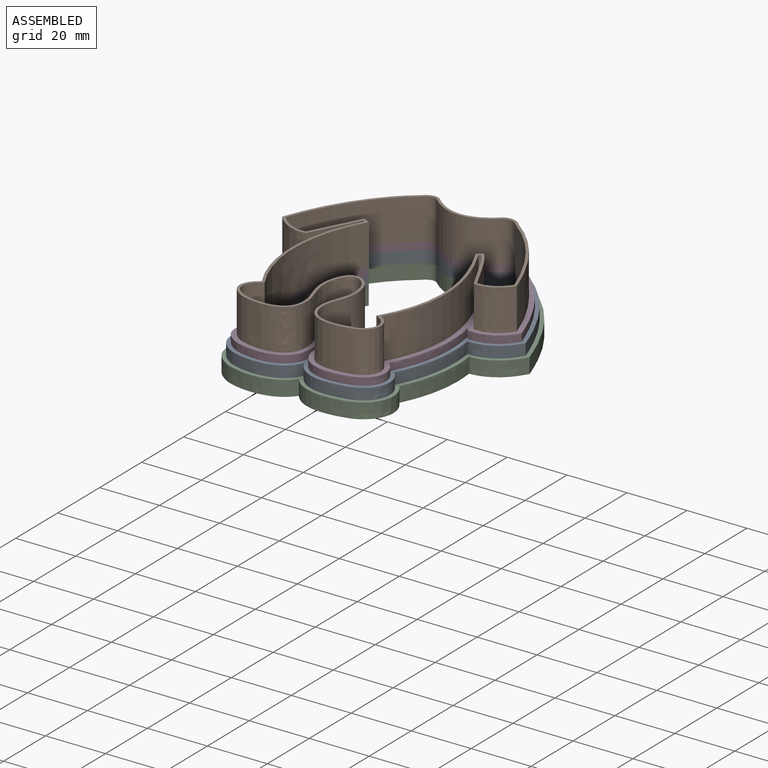
[diagram: assembled view]
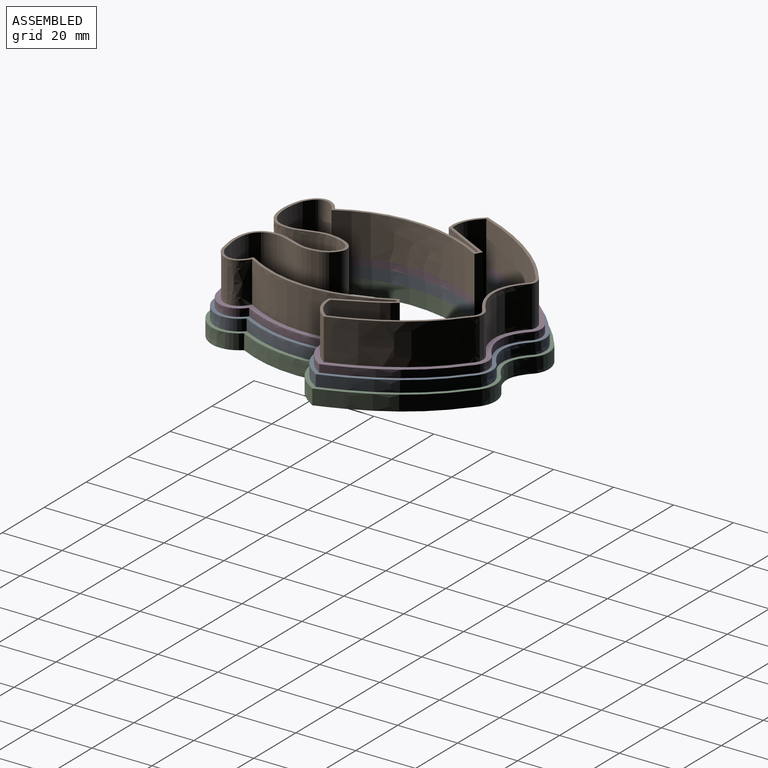
[diagram: assembled view, second angle]
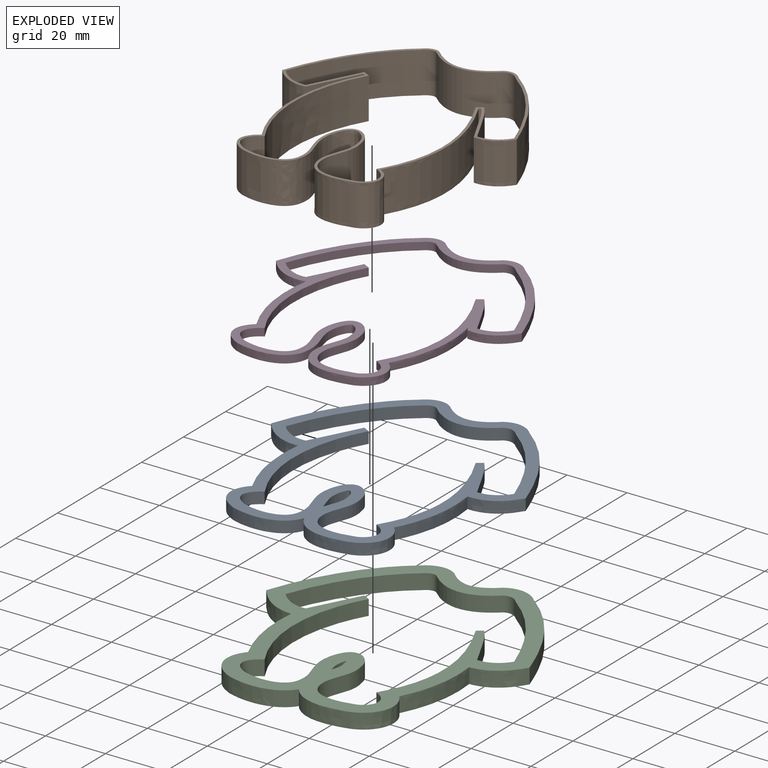
[diagram: exploded view]
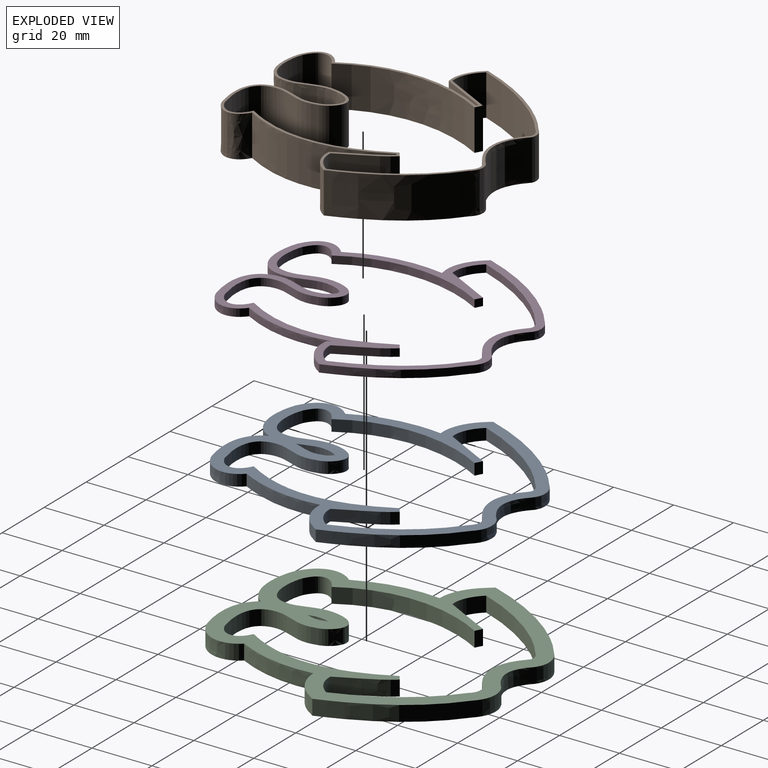
[diagram: exploded view, second angle]
ASSEMBLY  parts=4 mates=3
PART A: 39 faces, bbox 88.5x93.8x7.5 mm
  f0: plane 93.84x88.53mm, normal (0,0,1), area 1396.7mm2, adj f2,f3,f4,f5,f6,f7,f8,f9
  f1: plane 93.84x88.53mm, normal (0,0,-1), area 1396.7mm2, adj f2,f3,f4,f5,f6,f7,f8,f9
  f2: extruded ~3.81x3.17mm, area 13.3mm2, adj f0,f1,f17,f18
  f3: extruded ~9.79x3.81mm, area 38.6mm2, adj f0,f1,f17,f18
  f4: extruded ~19.63x6.68mm, area 85.5mm2, adj f0,f1,f5,f16
  f5: extruded ~14.43x6.72mm, area 69.8mm2, adj f0,f1,f4,f6
  f6: extruded ~28.01x5.45mm, area 110.3mm2, adj f0,f1,f5,f7
  f7: extruded ~13.71x8.15mm, area 64.2mm2, adj f0,f1,f6,f8
  f8: extruded ~35.43x23.59mm, area 164.8mm2, adj f0,f1,f7,f9
  f9: extruded ~9.82x3.81mm, area 40.9mm2, adj f0,f1,f8,f10
  f10: extruded ~17.84x4.35mm, area 77.6mm2, adj f0,f1,f9,f11
  f11: extruded ~8.95x3.81mm, area 38.1mm2, adj f0,f1,f10,f12
  f12: extruded ~35.98x24.62mm, area 168.5mm2, adj f0,f1,f11,f13
  f13: extruded ~14.33x7.58mm, area 64.2mm2, adj f0,f1,f12,f14
  f14: extruded ~28.6x5.12mm, area 112.1mm2, adj f0,f1,f13,f15
  f15: extruded ~14.22x6.23mm, area 67.5mm2, adj f0,f1,f14,f16
  f16: extruded ~20.24x6.92mm, area 88.5mm2, adj f0,f1,f4,f15
  f17: extruded ~9.61x3.81mm, area 37.6mm2, adj f0,f1,f2,f3
  f18: extruded ~3.81x2.99mm, area 13.9mm2, adj f0,f1,f2,f3
  f19: extruded ~16.15x3.81mm, area 63.3mm2, adj f0,f1,f20,f38
  f20: extruded ~15.43x6.17mm, area 71.3mm2, adj f0,f1,f19,f21
  f21: extruded ~9.6x4.04mm, area 50.7mm2, adj f0,f1,f20,f22
  f22: extruded ~48.24x7.33mm, area 193.6mm2, adj f0,f1,f21,f23
  f23: plane 3.81x1.9mm, normal (-0.59,0.81,0), area 8.9mm2, adj f0,f1,f22,f24
  f24: extruded ~16.63x9.26mm, area 72.7mm2, adj f0,f1,f23,f25
  f25: extruded ~8.95x4.86mm, area 40.6mm2, adj f0,f1,f24,f26
  f26: extruded ~32.06x21.92mm, area 150.3mm2, adj f0,f1,f25,f27
  f27: extruded ~5.06x3.81mm, area 21.7mm2, adj f0,f1,f26,f28
  f28: extruded ~22.41x5.16mm, area 96mm2, adj f0,f1,f27,f29
  f29: extruded ~4.09x3.81mm, area 17.4mm2, adj f0,f1,f28,f30
  f30: extruded ~32.33x22.77mm, area 152.7mm2, adj f0,f1,f29,f31
  f31: extruded ~9.83x4.52mm, area 42.8mm2, adj f0,f1,f30,f32
  f32: plane 16.02x8.32mm, normal (-0.89,0.46,0), area 68.8mm2, adj f0,f1,f31,f33
  f33: plane 3.81x2.3mm, normal (0.47,0.88,0), area 9.9mm2, adj f0,f1,f32,f34
  f34: extruded ~48.33x7.12mm, area 193.3mm2, adj f0,f1,f33,f35
  f35: extruded ~9.64x3.95mm, area 49.9mm2, adj f0,f1,f34,f36
  f36: extruded ~15.4x5.65mm, area 69.6mm2, adj f0,f1,f35,f37
  f37: extruded ~16.9x3.81mm, area 65.7mm2, adj f0,f1,f36,f38
  f38: extruded ~10.77x6.17mm, area 67.2mm2, adj f0,f1,f19,f37
PART B: 42 faces, bbox 82.8x88.8x18.2 mm
  f0: plane 88.8x82.77mm, normal (0,0,1), area 353.1mm2, adj f2,f3,f4,f5,f6,f7,f8,f9
  f1: plane 88.8x82.77mm, normal (0,0,-1), area 353.1mm2, adj f2,f3,f4,f5,f6,f7,f8,f9
  f2: extruded ~16.11x13.72mm, area 227.1mm2, adj f0,f1,f3,f21
  f3: extruded ~16.57x13.72mm, area 277.9mm2, adj f0,f1,f2,f4
  f4: extruded ~13.72x10.81mm, area 198.4mm2, adj f0,f1,f3,f5
  f5: extruded ~47.62x13.72mm, area 685.9mm2, adj f0,f1,f4,f6
  f6: plane 13.72x0.6mm, normal (0.59,-0.81,0), area 10.1mm2, adj f0,f1,f5,f7
  f7: extruded ~16.28x13.72mm, area 254.8mm2, adj f0,f1,f6,f8
  f8: extruded ~13.72x10.48mm, area 171.8mm2, adj f0,f1,f7,f9
  f9: extruded ~32.85x22.31mm, area 553mm2, adj f0,f1,f8,f10
  f10: extruded ~13.72x6.18mm, area 94.5mm2, adj f0,f1,f9,f11
  f11: extruded ~21.34x13.72mm, area 330.1mm2, adj f0,f1,f10,f12
  f12: extruded ~13.72x5.23mm, area 79.3mm2, adj f0,f1,f11,f13
  f13: extruded ~33.17x23.2mm, area 562.9mm2, adj f0,f1,f12,f14
  f14: extruded ~13.72x11.42mm, area 180.1mm2, adj f0,f1,f13,f15
  f15: plane 15.63x13.72mm, normal (0.89,-0.46,0), area 241.5mm2, adj f0,f1,f14,f16
  f16: plane 13.72x0.69mm, normal (-0.47,-0.88,0), area 10.7mm2, adj f0,f1,f15,f17
  f17: extruded ~47.64x13.72mm, area 683.8mm2, adj f0,f1,f16,f18
  f18: extruded ~13.72x10.78mm, area 194.2mm2, adj f0,f1,f17,f19
  f19: extruded ~16.64x13.72mm, area 273mm2, adj f0,f1,f18,f20
  f20: extruded ~16.83x13.72mm, area 235.6mm2, adj f0,f1,f19,f21
  f21: extruded ~13.72x9.02mm, area 208.7mm2, adj f0,f1,f2,f20
  f22: extruded ~16.15x13.72mm, area 227.7mm2, adj f0,f1,f23,f41
  f23: extruded ~15.43x13.72mm, area 256.6mm2, adj f0,f1,f22,f24
  f24: extruded ~13.72x9.6mm, area 182.5mm2, adj f0,f1,f23,f25
  f25: extruded ~48.24x13.72mm, area 697mm2, adj f0,f1,f24,f26
  f26: plane 13.72x1.9mm, normal (-0.59,0.81,0), area 32.1mm2, adj f0,f1,f25,f27
  f27: extruded ~16.63x13.72mm, area 261.8mm2, adj f0,f1,f26,f28
  f28: extruded ~13.72x8.95mm, area 146.2mm2, adj f0,f1,f27,f29
  f29: extruded ~32.06x21.92mm, area 540.9mm2, adj f0,f1,f28,f30
  f30: extruded ~13.72x5.06mm, area 78mm2, adj f0,f1,f29,f31
  f31: extruded ~22.41x13.72mm, area 345.7mm2, adj f0,f1,f30,f32
  f32: extruded ~13.72x4.09mm, area 62.8mm2, adj f0,f1,f31,f33
  f33: extruded ~32.33x22.77mm, area 549.7mm2, adj f0,f1,f32,f34
  f34: extruded ~13.72x9.83mm, area 154.2mm2, adj f0,f1,f33,f35
  f35: plane 16.02x13.72mm, normal (-0.89,0.46,0), area 247.6mm2, adj f0,f1,f34,f36
  f36: plane 13.72x2.3mm, normal (0.47,0.88,0), area 35.6mm2, adj f0,f1,f35,f37
  f37: extruded ~48.33x13.72mm, area 695.9mm2, adj f0,f1,f36,f38
  f38: extruded ~13.72x9.64mm, area 179.5mm2, adj f0,f1,f37,f39
  f39: extruded ~15.4x13.72mm, area 250.5mm2, adj f0,f1,f38,f40
  f40: extruded ~16.9x13.72mm, area 236.7mm2, adj f0,f1,f39,f41
  f41: extruded ~13.72x10.77mm, area 241.9mm2, adj f0,f1,f22,f40
PART C: 39 faces, bbox 92.2x97.2x9.7 mm
  f0: plane 97.24x92.25mm, normal (0,0,1), area 1809.1mm2, adj f2,f3,f4,f5,f6,f7,f8,f9
  f1: plane 97.24x92.25mm, normal (0,0,-1), area 1809.1mm2, adj f2,f3,f4,f5,f6,f7,f8,f9
  f2: extruded ~5.08x1.4mm, area 7.5mm2, adj f0,f1,f17,f18
  f3: extruded ~5.65x5.08mm, area 29.4mm2, adj f0,f1,f17,f18
  f4: extruded ~19.98x5.19mm, area 110.5mm2, adj f0,f1,f5,f16
  f5: extruded ~15.88x7.61mm, area 101.9mm2, adj f0,f1,f4,f6
  f6: extruded ~26.47x5.17mm, area 138.7mm2, adj f0,f1,f5,f7
  f7: extruded ~13.66x9.24mm, area 88mm2, adj f0,f1,f6,f8
  f8: extruded ~36.55x24.16mm, area 226mm2, adj f0,f1,f7,f9
  f9: extruded ~11.39x5.08mm, area 63.8mm2, adj f0,f1,f8,f10
  f10: extruded ~16.31x5.08mm, area 95.1mm2, adj f0,f1,f9,f11
  f11: extruded ~10.56x5.08mm, area 58.7mm2, adj f0,f1,f10,f12
  f12: extruded ~37.2x25.25mm, area 231.5mm2, adj f0,f1,f11,f13
  f13: extruded ~14.33x8.61mm, area 89mm2, adj f0,f1,f12,f14
  f14: extruded ~27.02x5.08mm, area 141.1mm2, adj f0,f1,f13,f15
  f15: extruded ~15.62x6.99mm, area 98mm2, adj f0,f1,f14,f16
  f16: extruded ~20.78x5.42mm, area 115.5mm2, adj f0,f1,f4,f15
  f17: extruded ~5.41x5.08mm, area 27.9mm2, adj f0,f1,f2,f3
  f18: extruded ~5.08x1.16mm, area 6.4mm2, adj f0,f1,f2,f3
  f19: extruded ~16.15x5.08mm, area 84.3mm2, adj f0,f1,f20,f38
  f20: extruded ~15.43x6.17mm, area 95mm2, adj f0,f1,f19,f21
  f21: extruded ~9.6x5.08mm, area 67.6mm2, adj f0,f1,f20,f22
  f22: extruded ~48.24x7.33mm, area 258.2mm2, adj f0,f1,f21,f23
  f23: plane 5.08x1.9mm, normal (-0.59,0.81,0), area 11.9mm2, adj f0,f1,f22,f24
  f24: extruded ~16.63x9.26mm, area 97mm2, adj f0,f1,f23,f25
  f25: extruded ~8.95x5.08mm, area 54.2mm2, adj f0,f1,f24,f26
  f26: extruded ~32.06x21.92mm, area 200.3mm2, adj f0,f1,f25,f27
  f27: extruded ~5.08x5.06mm, area 28.9mm2, adj f0,f1,f26,f28
  f28: extruded ~22.41x5.16mm, area 128mm2, adj f0,f1,f27,f29
  f29: extruded ~5.08x4.09mm, area 23.3mm2, adj f0,f1,f28,f30
  f30: extruded ~32.33x22.77mm, area 203.6mm2, adj f0,f1,f29,f31
  f31: extruded ~9.83x5.08mm, area 57.1mm2, adj f0,f1,f30,f32
  f32: plane 16.02x8.32mm, normal (-0.89,0.46,0), area 91.7mm2, adj f0,f1,f31,f33
  f33: plane 5.08x2.3mm, normal (0.47,0.88,0), area 13.2mm2, adj f0,f1,f32,f34
  f34: extruded ~48.33x7.12mm, area 257.8mm2, adj f0,f1,f33,f35
  f35: extruded ~9.64x5.08mm, area 66.5mm2, adj f0,f1,f34,f36
  f36: extruded ~15.4x5.65mm, area 92.8mm2, adj f0,f1,f35,f37
  f37: extruded ~16.9x5.08mm, area 87.7mm2, adj f0,f1,f36,f38
  f38: extruded ~10.77x6.17mm, area 89.6mm2, adj f0,f1,f19,f37
PART D: 40 faces, bbox 84x89.6x4.6 mm
  f0: plane 89.64x84.03mm, normal (0,0,1), area 967mm2, adj f2,f3,f4,f5,f6,f7,f8,f9
  f1: plane 89.64x84.03mm, normal (0,0,-1), area 967mm2, adj f2,f3,f4,f5,f6,f7,f8,f9
  f2: extruded ~16.03x2.85mm, area 41.9mm2, adj f0,f1,f3,f19
  f3: extruded ~18.7x8.39mm, area 58.8mm2, adj f0,f1,f2,f4
  f4: extruded ~12.91x5.82mm, area 42.2mm2, adj f0,f1,f3,f5
  f5: extruded ~31x5.79mm, area 81.5mm2, adj f0,f1,f4,f6
  f6: extruded ~2.54x1.36mm, area 4mm2, adj f0,f1,f5,f7
  f7: extruded ~13.31x7.05mm, area 40.5mm2, adj f0,f1,f6,f8
  f8: extruded ~34.3x23.03mm, area 106.6mm2, adj f0,f1,f7,f9
  f9: extruded ~8.24x2.54mm, area 23.2mm2, adj f0,f1,f8,f10
  f10: extruded ~19.36x4.62mm, area 55.8mm2, adj f0,f1,f9,f11
  f11: extruded ~7.34x2.54mm, area 20.4mm2, adj f0,f1,f10,f12
  f12: extruded ~34.76x24mm, area 108.8mm2, adj f0,f1,f11,f13
  f13: extruded ~14.38x6.56mm, area 42.1mm2, adj f0,f1,f12,f14
  f14: plane 2.54x0.08mm, normal (0.89,-0.46,0), area 0.2mm2, adj f0,f1,f13,f15
  f15: extruded ~30.48x5.43mm, area 79.8mm2, adj f0,f1,f14,f16
  f16: extruded ~12.77x5.47mm, area 41mm2, adj f0,f1,f15,f17
  f17: extruded ~18.94x7.83mm, area 58.3mm2, adj f0,f1,f16,f18
  f18: extruded ~16.69x2.54mm, area 43.3mm2, adj f0,f1,f17,f19
  f19: extruded ~5.78x4.2mm, area 27.1mm2, adj f0,f1,f2,f18
  f20: extruded ~16.15x2.85mm, area 42.2mm2, adj f0,f1,f21,f39
  f21: extruded ~15.43x6.17mm, area 47.5mm2, adj f0,f1,f20,f22
  f22: extruded ~9.6x4.04mm, area 33.8mm2, adj f0,f1,f21,f23
  f23: extruded ~48.24x7.33mm, area 129.1mm2, adj f0,f1,f22,f24
  f24: plane 2.54x1.9mm, normal (-0.59,0.81,0), area 5.9mm2, adj f0,f1,f23,f25
  f25: extruded ~16.63x9.26mm, area 48.5mm2, adj f0,f1,f24,f26
  f26: extruded ~8.95x4.86mm, area 27.1mm2, adj f0,f1,f25,f27
  f27: extruded ~32.06x21.92mm, area 100.2mm2, adj f0,f1,f26,f28
  f28: extruded ~5.06x2.54mm, area 14.4mm2, adj f0,f1,f27,f29
  f29: extruded ~22.41x5.16mm, area 64mm2, adj f0,f1,f28,f30
  f30: extruded ~4.09x2.54mm, area 11.6mm2, adj f0,f1,f29,f31
  f31: extruded ~32.33x22.77mm, area 101.8mm2, adj f0,f1,f30,f32
  f32: extruded ~9.83x4.52mm, area 28.6mm2, adj f0,f1,f31,f33
  f33: plane 16.02x8.32mm, normal (-0.89,0.46,0), area 45.9mm2, adj f0,f1,f32,f34
  f34: plane 2.54x2.3mm, normal (0.47,0.88,0), area 6.6mm2, adj f0,f1,f33,f35
  f35: extruded ~48.33x7.12mm, area 128.9mm2, adj f0,f1,f34,f36
  f36: extruded ~9.64x3.95mm, area 33.2mm2, adj f0,f1,f35,f37
  f37: extruded ~15.4x5.65mm, area 46.4mm2, adj f0,f1,f36,f38
  f38: extruded ~16.9x2.54mm, area 43.8mm2, adj f0,f1,f37,f39
  f39: extruded ~10.77x6.17mm, area 44.8mm2, adj f0,f1,f20,f38
PLACE A t=(-118.43,169.56,10.19)mm
PLACE B t=(-4.65,141.8,16.54)mm
PLACE C t=(92.13,108.57,5.11)mm
PLACE D t=(-77.22,89.26,14)mm
MATE fastened B.f1 <-> D.f0  axis (0,0,1) through (-29.74,150.82,16.54)mm
MATE fastened A.f0 <-> D.f1  axis (0,0,1) through (-29.74,150.82,14)mm
MATE fastened A.f1 <-> C.f0  axis (0,0,1) through (-29.74,150.82,10.19)mm
